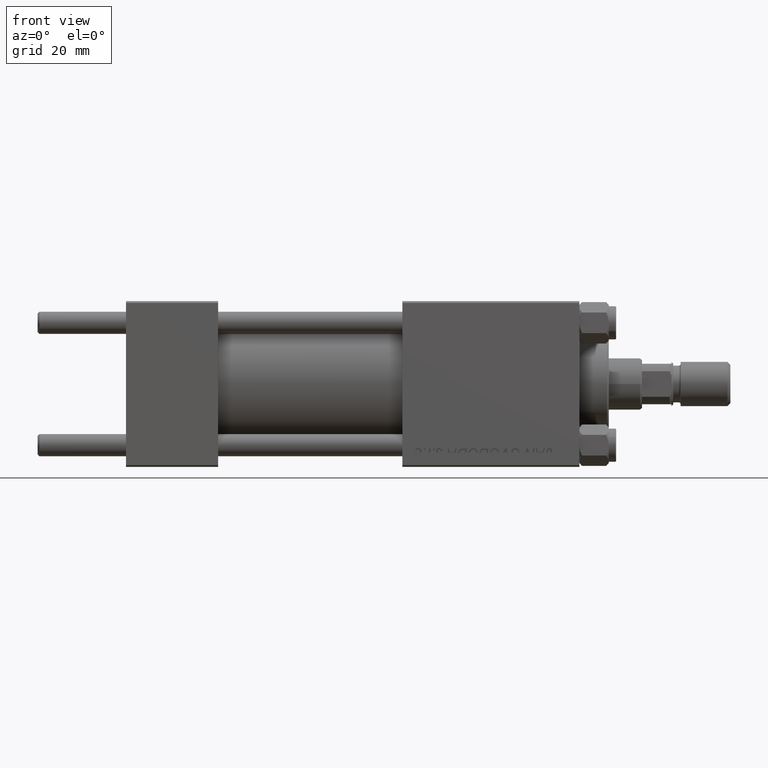
[diagram: clean part render]
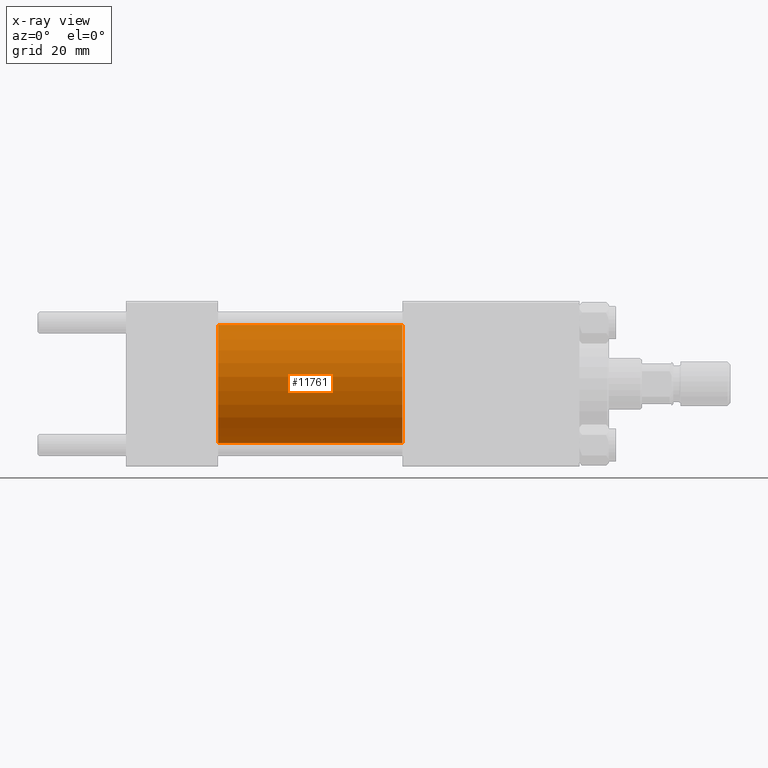
[diagram: x-ray — body ghosted, one internal face saturated and labeled with its STEP entity id]
A machine part, front view, then the same camera in x-ray: the body is ghosted and one INTERNAL B-rep face — a face not visible from any outside direction — is saturated and labeled: STEP entity #11761.
In plain terms, the highlighted cylindrical surface (partial cylindrical patch) has radius 16 mm, axis along (-1, -0, -0).
Its self-contained STEP definition (entity closure, byte-faithful):
#1490 = DIRECTION ( 'NONE',  ( -1.000000000000000000, -0.000000000000000000, -0.000000000000000000 ) ) ;
#1552 = CARTESIAN_POINT ( 'NONE',  ( 75.00000000000001421, 1.959434878635765131E-15, -16.00000000000000000 ) ) ;
#3264 = AXIS2_PLACEMENT_3D ( 'NONE', #44705, #1490, #21301 ) ;
#4136 = CIRCLE ( 'NONE', #25254, 16.00000000000000000 ) ;
#4857 = LINE ( 'NONE', #1552, #29046 ) ;
#5575 = CIRCLE ( 'NONE', #49420, 16.00000000000000000 ) ;
#5718 = VERTEX_POINT ( 'NONE', #25896 ) ;
#6420 = EDGE_CURVE ( 'NONE', #37253, #20910, #5575, .T. ) ;
#7953 = CARTESIAN_POINT ( 'NONE',  ( 75.00000000000001421, 0.000000000000000000, 16.00000000000000000 ) ) ;
#8923 = CARTESIAN_POINT ( 'NONE',  ( 75.00000000000001421, 0.000000000000000000, 0.000000000000000000 ) ) ;
#9619 = EDGE_CURVE ( 'NONE', #20179, #5718, #4136, .T. ) ;
#11171 = ORIENTED_EDGE ( 'NONE', *, *, #42846, .F. ) ;
#11503 = ORIENTED_EDGE ( 'NONE', *, *, #6420, .T. ) ;
#11705 = ORIENTED_EDGE ( 'NONE', *, *, #9619, .F. ) ;
#11761 = ADVANCED_FACE ( 'NONE', ( #24364 ), #13656, .F. ) ;
#13656 = CYLINDRICAL_SURFACE ( 'NONE', #3264, 16.00000000000000000 ) ;
#16551 = CARTESIAN_POINT ( 'NONE',  ( 25.00000000000000000, 0.000000000000000000, 0.000000000000000000 ) ) ;
#16794 = DIRECTION ( 'NONE',  ( 1.000000000000000000, 0.000000000000000000, 0.000000000000000000 ) ) ;
#20179 = VERTEX_POINT ( 'NONE', #20643 ) ;
#20643 = CARTESIAN_POINT ( 'NONE',  ( 25.00000000000000000, 0.000000000000000000, 16.00000000000000000 ) ) ;
#20673 = CARTESIAN_POINT ( 'NONE',  ( 75.00000000000001421, 0.000000000000000000, 16.00000000000000000 ) ) ;
#20910 = VERTEX_POINT ( 'NONE', #47116 ) ;
#21301 = DIRECTION ( 'NONE',  ( 0.000000000000000000, 0.000000000000000000, 1.000000000000000000 ) ) ;
#23453 = LINE ( 'NONE', #7953, #38798 ) ;
#23643 = ORIENTED_EDGE ( 'NONE', *, *, #37620, .T. ) ;
#24364 = FACE_OUTER_BOUND ( 'NONE', #43614, .T. ) ;
#25254 = AXIS2_PLACEMENT_3D ( 'NONE', #16551, #16794, #32318 ) ;
#25896 = CARTESIAN_POINT ( 'NONE',  ( 25.00000000000000000, 1.959434878635765131E-15, -16.00000000000000000 ) ) ;
#29046 = VECTOR ( 'NONE', #43531, 1000.000000000000000 ) ;
#30565 = DIRECTION ( 'NONE',  ( -1.000000000000000000, -0.000000000000000000, -0.000000000000000000 ) ) ;
#32318 = DIRECTION ( 'NONE',  ( 0.000000000000000000, 0.000000000000000000, -1.000000000000000000 ) ) ;
#35882 = DIRECTION ( 'NONE',  ( 0.000000000000000000, 0.000000000000000000, -1.000000000000000000 ) ) ;
#37253 = VERTEX_POINT ( 'NONE', #20673 ) ;
#37620 = EDGE_CURVE ( 'NONE', #20910, #5718, #4857, .T. ) ;
#38798 = VECTOR ( 'NONE', #30565, 1000.000000000000000 ) ;
#42846 = EDGE_CURVE ( 'NONE', #37253, #20179, #23453, .T. ) ;
#43531 = DIRECTION ( 'NONE',  ( -1.000000000000000000, -0.000000000000000000, -0.000000000000000000 ) ) ;
#43614 = EDGE_LOOP ( 'NONE', ( #11503, #23643, #11705, #11171 ) ) ;
#44705 = CARTESIAN_POINT ( 'NONE',  ( 75.00000000000001421, 0.000000000000000000, 0.000000000000000000 ) ) ;
#47116 = CARTESIAN_POINT ( 'NONE',  ( 75.00000000000001421, 1.959434878635765131E-15, -16.00000000000000000 ) ) ;
#48096 = DIRECTION ( 'NONE',  ( 1.000000000000000000, 0.000000000000000000, 0.000000000000000000 ) ) ;
#49420 = AXIS2_PLACEMENT_3D ( 'NONE', #8923, #48096, #35882 ) ;